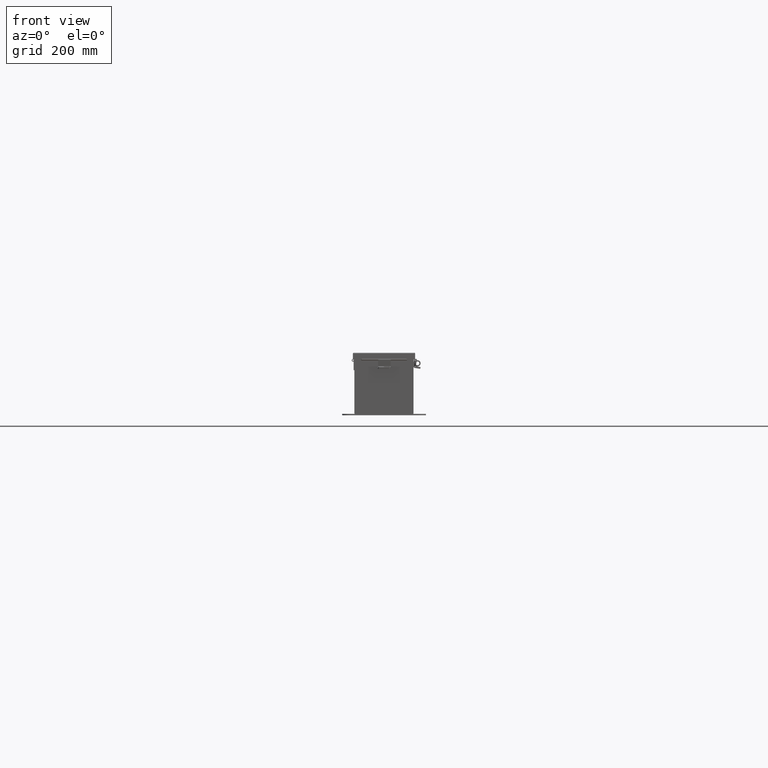
[diagram: clean part render]
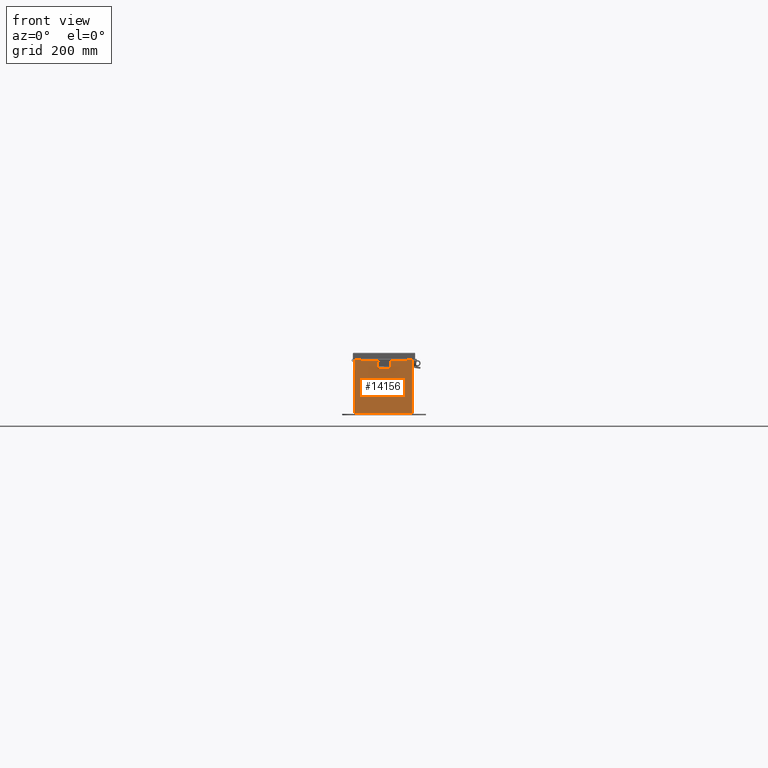
[diagram: same view with one face highlighted and labeled with its STEP entity id]
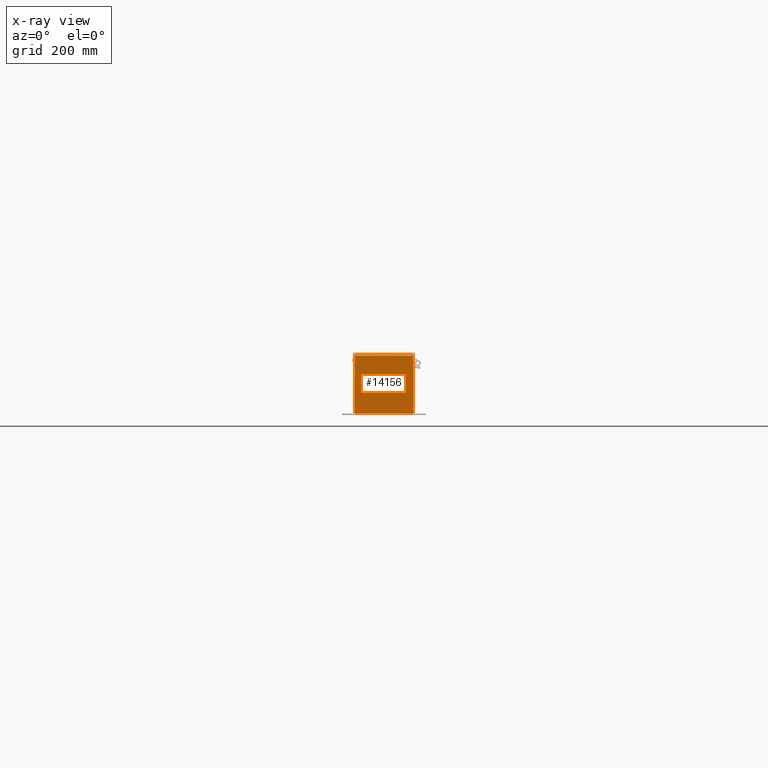
[diagram: x-ray of the same camera — body ghosted, the highlighted face saturated]
A machine part, front view. The second image highlights one B-rep face of the part: STEP entity #14156.
The next image is the same camera in x-ray: the body ghosted, the highlighted face saturated — about 0% of this face is hidden behind the body in this view.
In plain terms, the highlighted planar face has unit normal (-0, 1, -0).
Its self-contained STEP definition (entity closure, byte-faithful):
#166 = CARTESIAN_POINT ( 'NONE',  ( -2.582299999999988500, 7.867722221753078700E-014, 2.874949999999999200 ) ) ;
#254 = VERTEX_POINT ( 'NONE', #21781 ) ;
#784 = EDGE_CURVE ( 'NONE', #24934, #47734, #24212, .T. ) ;
#1762 = VECTOR ( 'NONE', #22543, 39.37007874015748100 ) ;
#2493 = ORIENTED_EDGE ( 'NONE', *, *, #784, .F. ) ;
#3319 = ORIENTED_EDGE ( 'NONE', *, *, #48541, .F. ) ;
#3735 = EDGE_CURVE ( 'NONE', #25085, #17968, #34256, .T. ) ;
#4050 = VERTEX_POINT ( 'NONE', #166 ) ;
#4728 = EDGE_CURVE ( 'NONE', #31606, #17968, #13484, .T. ) ;
#4804 = CARTESIAN_POINT ( 'NONE',  ( 2.619650000000011600, 7.867722221753078700E-014, 2.874949999999999200 ) ) ;
#5217 = DIRECTION ( 'NONE',  ( -1.085143195099989400E-014, 0.0000000000000000000, -1.000000000000000000 ) ) ;
#6151 = VECTOR ( 'NONE', #17397, 39.37007874015748100 ) ;
#6935 = EDGE_CURVE ( 'NONE', #4050, #39921, #24102, .T. ) ;
#8566 = CARTESIAN_POINT ( 'NONE',  ( 2.925300000000001800, 7.867722221753078700E-014, -2.925300000000000500 ) ) ;
#8959 = PLANE ( 'NONE',  #40733 ) ;
#9398 = CARTESIAN_POINT ( 'NONE',  ( 2.600975000000011600, 7.867722221753078700E-014, 2.874949999999999200 ) ) ;
#9477 = DIRECTION ( 'NONE',  ( 1.107301242518083700E-030, 1.000000000000000000, -0.0000000000000000000 ) ) ;
#9653 = CARTESIAN_POINT ( 'NONE',  ( -2.925299999999988500, 0.0000000000000000000, 2.925299999999999600 ) ) ;
#10070 = ORIENTED_EDGE ( 'NONE', *, *, #3735, .F. ) ;
#10180 = EDGE_CURVE ( 'NONE', #254, #42119, #31092, .T. ) ;
#10967 = ORIENTED_EDGE ( 'NONE', *, *, #10180, .T. ) ;
#11102 = CARTESIAN_POINT ( 'NONE',  ( -2.925299999999998200, 0.0000000000000000000, -2.925299999999990700 ) ) ;
#12128 = VERTEX_POINT ( 'NONE', #46447 ) ;
#12197 = CARTESIAN_POINT ( 'NONE',  ( -2.925299999999988500, 0.0000000000000000000, 2.925299999999999600 ) ) ;
#12282 = ORIENTED_EDGE ( 'NONE', *, *, #6935, .F. ) ;
#12284 = VECTOR ( 'NONE', #27064, 39.37007874015748100 ) ;
#12973 = EDGE_CURVE ( 'NONE', #47734, #25085, #39844, .T. ) ;
#13243 = LINE ( 'NONE', #18645, #1762 ) ;
#13255 = DIRECTION ( 'NONE',  ( 0.0000000000000000000, 0.0000000000000000000, -1.000000000000000000 ) ) ;
#13436 = CARTESIAN_POINT ( 'NONE',  ( -2.582299999999988500, 0.0000000000000000000, 9.834652777191348400E-015 ) ) ;
#13484 = LINE ( 'NONE', #35692, #12284 ) ;
#14156 = ADVANCED_FACE ( 'NONE', ( #39804 ), #8959, .F. ) ;
#14725 = VERTEX_POINT ( 'NONE', #8566 ) ;
#14977 = DIRECTION ( 'NONE',  ( 0.0000000000000000000, 0.0000000000000000000, 1.000000000000000000 ) ) ;
#15126 = VECTOR ( 'NONE', #34341, 39.37007874015748100 ) ;
#16118 = DIRECTION ( 'NONE',  ( 1.000000000000000000, 1.107301242518083700E-030, 0.0000000000000000000 ) ) ;
#16515 = CARTESIAN_POINT ( 'NONE',  ( -2.925299999999998200, 0.0000000000000000000, -2.925299999999990700 ) ) ;
#17397 = DIRECTION ( 'NONE',  ( 0.0000000000000000000, 0.0000000000000000000, -1.000000000000000000 ) ) ;
#17644 = LINE ( 'NONE', #13436, #6151 ) ;
#17968 = VERTEX_POINT ( 'NONE', #43619 ) ;
#18343 = VECTOR ( 'NONE', #16118, 39.37007874015748100 ) ;
#18645 = CARTESIAN_POINT ( 'NONE',  ( -2.925299999999988500, 0.0000000000000000000, 2.925299999999999600 ) ) ;
#19335 = AXIS2_PLACEMENT_3D ( 'NONE', #32716, #9477, #36593 ) ;
#19454 = EDGE_CURVE ( 'NONE', #12128, #14725, #26975, .T. ) ;
#20655 = DIRECTION ( 'NONE',  ( -1.107301242518083700E-030, -1.000000000000000000, -0.0000000000000000000 ) ) ;
#21158 = DIRECTION ( 'NONE',  ( 0.0000000000000000000, 0.0000000000000000000, -1.000000000000000000 ) ) ;
#21619 = VECTOR ( 'NONE', #48443, 39.37007874015748100 ) ;
#21781 = CARTESIAN_POINT ( 'NONE',  ( -2.925299999999988500, 0.0000000000000000000, 2.925299999999999600 ) ) ;
#22543 = DIRECTION ( 'NONE',  ( 1.000000000000000000, 1.107301242518083700E-030, 0.0000000000000000000 ) ) ;
#22759 = CARTESIAN_POINT ( 'NONE',  ( -2.619649999999988500, 7.867722221753078700E-014, 2.874949999999997000 ) ) ;
#23115 = AXIS2_PLACEMENT_3D ( 'NONE', #9398, #36514, #13255 ) ;
#23847 = ORIENTED_EDGE ( 'NONE', *, *, #12973, .F. ) ;
#24102 = CIRCLE ( 'NONE', #19335, 0.01867500000000003900 ) ;
#24212 = LINE ( 'NONE', #32205, #42312 ) ;
#24934 = VERTEX_POINT ( 'NONE', #32843 ) ;
#25085 = VERTEX_POINT ( 'NONE', #33848 ) ;
#26975 = LINE ( 'NONE', #32849, #36058 ) ;
#27013 = ORIENTED_EDGE ( 'NONE', *, *, #44584, .T. ) ;
#27064 = DIRECTION ( 'NONE',  ( 1.000000000000000000, 1.107301242518083700E-030, -0.0000000000000000000 ) ) ;
#28361 = CARTESIAN_POINT ( 'NONE',  ( -2.582299999999988500, 7.867722221753078700E-014, 2.912299999999998300 ) ) ;
#30176 = ORIENTED_EDGE ( 'NONE', *, *, #40420, .T. ) ;
#30416 = CARTESIAN_POINT ( 'NONE',  ( -2.619649999999988500, 0.0000000000000000000, 0.0000000000000000000 ) ) ;
#31092 = LINE ( 'NONE', #12197, #18343 ) ;
#31109 = CARTESIAN_POINT ( 'NONE',  ( 2.582300000000011600, 0.0000000000000000000, 0.0000000000000000000 ) ) ;
#31606 = VERTEX_POINT ( 'NONE', #28361 ) ;
#32205 = CARTESIAN_POINT ( 'NONE',  ( 2.619649999999980500, 0.0000000000000000000, -1.912293595564984200E-014 ) ) ;
#32237 = ORIENTED_EDGE ( 'NONE', *, *, #19454, .T. ) ;
#32716 = CARTESIAN_POINT ( 'NONE',  ( -2.600974999999988500, 7.867722221753078700E-014, 2.874949999999999200 ) ) ;
#32843 = CARTESIAN_POINT ( 'NONE',  ( 2.619650000000011600, 7.867722221753078700E-014, 2.925300000000000500 ) ) ;
#32849 = CARTESIAN_POINT ( 'NONE',  ( 2.925300000000011600, 7.867722221753078700E-014, 2.925299999999999600 ) ) ;
#33047 = VECTOR ( 'NONE', #14977, 39.37007874015748100 ) ;
#33848 = CARTESIAN_POINT ( 'NONE',  ( 2.582300000000011600, 7.867722221753078700E-014, 2.874949999999999200 ) ) ;
#34256 = LINE ( 'NONE', #31109, #33047 ) ;
#34341 = DIRECTION ( 'NONE',  ( 0.0000000000000000000, 0.0000000000000000000, 1.000000000000000000 ) ) ;
#34627 = EDGE_CURVE ( 'NONE', #39921, #42119, #35806, .T. ) ;
#35692 = CARTESIAN_POINT ( 'NONE',  ( -2.582299999999988500, 7.867722221753078700E-014, 2.912299999999998300 ) ) ;
#35806 = LINE ( 'NONE', #30416, #15126 ) ;
#36058 = VECTOR ( 'NONE', #21158, 39.37007874015748100 ) ;
#36514 = DIRECTION ( 'NONE',  ( 1.107301242518083700E-030, 1.000000000000000000, -0.0000000000000000000 ) ) ;
#36573 = VERTEX_POINT ( 'NONE', #16515 ) ;
#36593 = DIRECTION ( 'NONE',  ( 0.0000000000000000000, 0.0000000000000000000, -1.000000000000000000 ) ) ;
#37815 = ORIENTED_EDGE ( 'NONE', *, *, #4728, .T. ) ;
#39804 = FACE_OUTER_BOUND ( 'NONE', #40193, .T. ) ;
#39844 = CIRCLE ( 'NONE', #23115, 0.01867500000000003900 ) ;
#39921 = VERTEX_POINT ( 'NONE', #22759 ) ;
#40193 = EDGE_LOOP ( 'NONE', ( #42230, #12282, #3319, #37815, #10070, #23847, #2493, #30176, #32237, #46728, #27013, #10967 ) ) ;
#40420 = EDGE_CURVE ( 'NONE', #24934, #12128, #13243, .T. ) ;
#40733 = AXIS2_PLACEMENT_3D ( 'NONE', #43818, #20655, #47729 ) ;
#41124 = EDGE_CURVE ( 'NONE', #14725, #36573, #50156, .T. ) ;
#42119 = VERTEX_POINT ( 'NONE', #46077 ) ;
#42176 = LINE ( 'NONE', #9653, #21619 ) ;
#42230 = ORIENTED_EDGE ( 'NONE', *, *, #34627, .F. ) ;
#42312 = VECTOR ( 'NONE', #5217, 39.37007874015748100 ) ;
#43501 = VECTOR ( 'NONE', #49899, 39.37007874015748100 ) ;
#43619 = CARTESIAN_POINT ( 'NONE',  ( 2.582300000000011600, 7.867722221753078700E-014, 2.912299999999998300 ) ) ;
#43818 = CARTESIAN_POINT ( 'NONE',  ( 0.0000000000000000000, 0.0000000000000000000, 0.0000000000000000000 ) ) ;
#44584 = EDGE_CURVE ( 'NONE', #36573, #254, #42176, .T. ) ;
#46077 = CARTESIAN_POINT ( 'NONE',  ( -2.619649999999988500, 7.867722221753078700E-014, 2.925299999999998200 ) ) ;
#46447 = CARTESIAN_POINT ( 'NONE',  ( 2.925300000000011600, 7.867722221753078700E-014, 2.925299999999999600 ) ) ;
#46728 = ORIENTED_EDGE ( 'NONE', *, *, #41124, .T. ) ;
#47729 = DIRECTION ( 'NONE',  ( 0.0000000000000000000, 0.0000000000000000000, -1.000000000000000000 ) ) ;
#47734 = VERTEX_POINT ( 'NONE', #4804 ) ;
#48443 = DIRECTION ( 'NONE',  ( 0.0000000000000000000, 0.0000000000000000000, 1.000000000000000000 ) ) ;
#48541 = EDGE_CURVE ( 'NONE', #31606, #4050, #17644, .T. ) ;
#49899 = DIRECTION ( 'NONE',  ( -1.000000000000000000, -1.107301242518083700E-030, 0.0000000000000000000 ) ) ;
#50156 = LINE ( 'NONE', #11102, #43501 ) ;